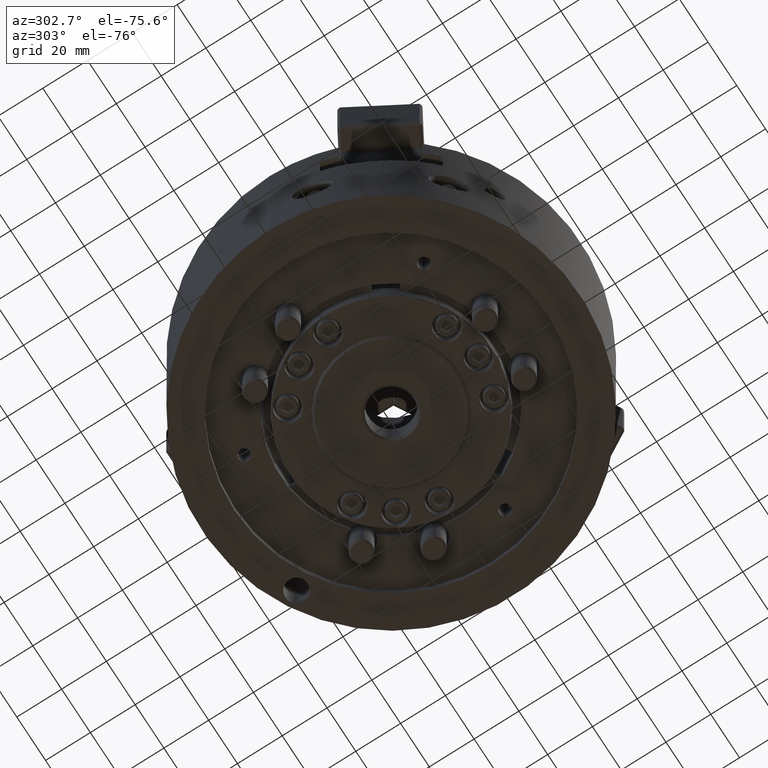
[diagram: clean part render]
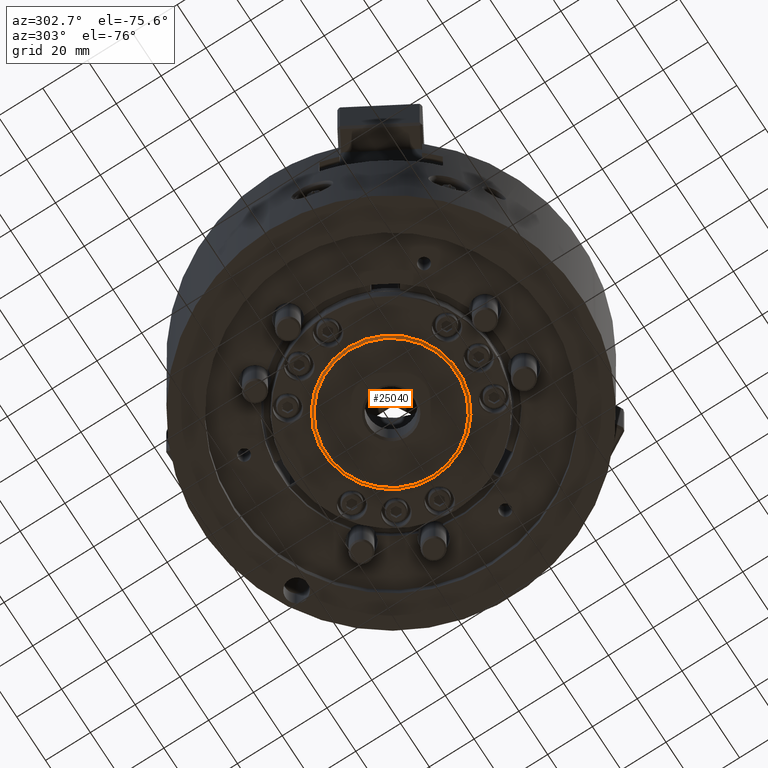
[diagram: same view with one face highlighted and labeled with its STEP entity id]
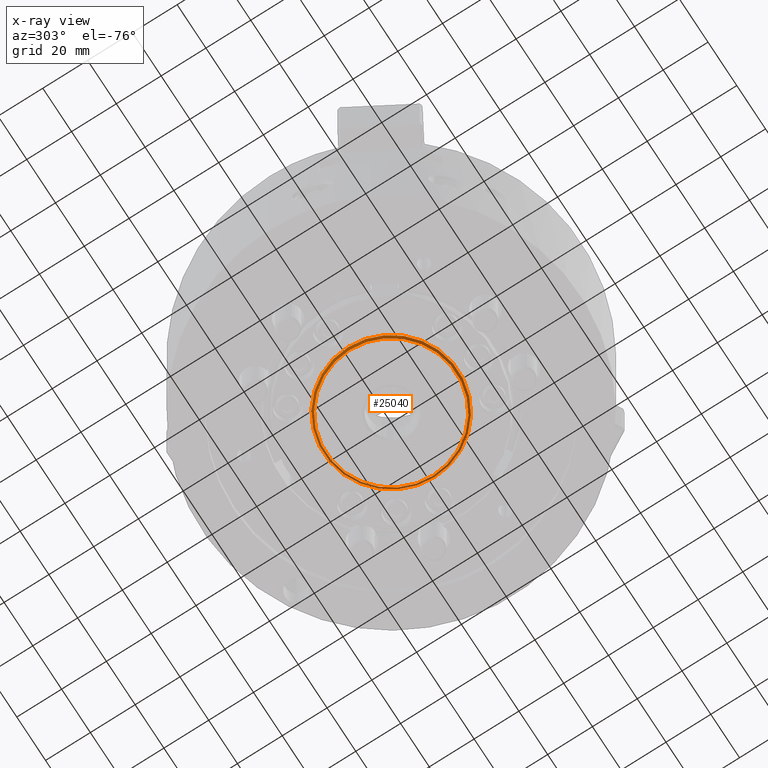
[diagram: x-ray of the same camera — body ghosted, the highlighted face saturated]
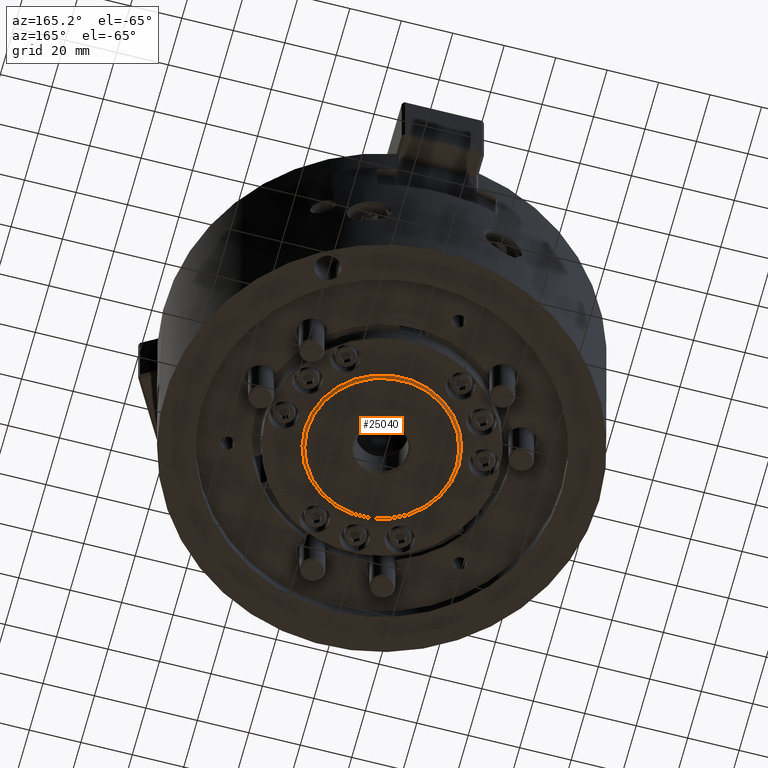
[diagram: same view with one face highlighted and labeled with its STEP entity id]
A machine part, auxiliary view. The second image highlights one B-rep face of the part: STEP entity #25040.
The next image is the same camera in x-ray: the body ghosted, the highlighted face saturated — about 0% of this face is hidden behind the body in this view.
A second angle (auxiliary view) of the same face is appended — the face is thin or edge-on in the first view.
In plain terms, the highlighted conical surface has half-angle 45 deg.
Its self-contained STEP definition (entity closure, byte-faithful):
#267=CONICAL_SURFACE('',#27096,29.,0.785398163397448);
#9148=ORIENTED_EDGE('',*,*,#14669,.F.);
#9149=ORIENTED_EDGE('',*,*,#14670,.T.);
#14669=EDGE_CURVE('',#17661,#17661,#19210,.T.);
#14670=EDGE_CURVE('',#17662,#17662,#19211,.T.);
#17661=VERTEX_POINT('',#42993);
#17662=VERTEX_POINT('',#42995);
#19210=CIRCLE('',#27097,29.);
#19211=CIRCLE('',#27098,30.);
#20484=EDGE_LOOP('',(#9148));
#20485=EDGE_LOOP('',(#9149));
#22414=FACE_BOUND('',#20484,.T.);
#22415=FACE_BOUND('',#20485,.T.);
#25040=ADVANCED_FACE('',(#22414,#22415),#267,.T.);
#27096=AXIS2_PLACEMENT_3D('',#42991,#31879,#31880);
#27097=AXIS2_PLACEMENT_3D('',#42992,#31881,#31882);
#27098=AXIS2_PLACEMENT_3D('',#42994,#31883,#31884);
#31879=DIRECTION('',(0.,0.,1.));
#31880=DIRECTION('',(1.,0.,8.63147152283892E-19));
#31881=DIRECTION('',(0.,0.,-1.));
#31882=DIRECTION('',(-1.,0.,0.));
#31883=DIRECTION('',(0.,0.,-1.));
#31884=DIRECTION('',(-1.,0.,0.));
#42991=CARTESIAN_POINT('',(0.,0.,-81.));
#42992=CARTESIAN_POINT('',(0.,0.,-81.));
#42993=CARTESIAN_POINT('',(-29.,0.,-81.));
#42994=CARTESIAN_POINT('',(-4.85722573273506E-14,6.85215773010839E-14,-80.));
#42995=CARTESIAN_POINT('',(-30.,6.85215773010839E-14,-80.));